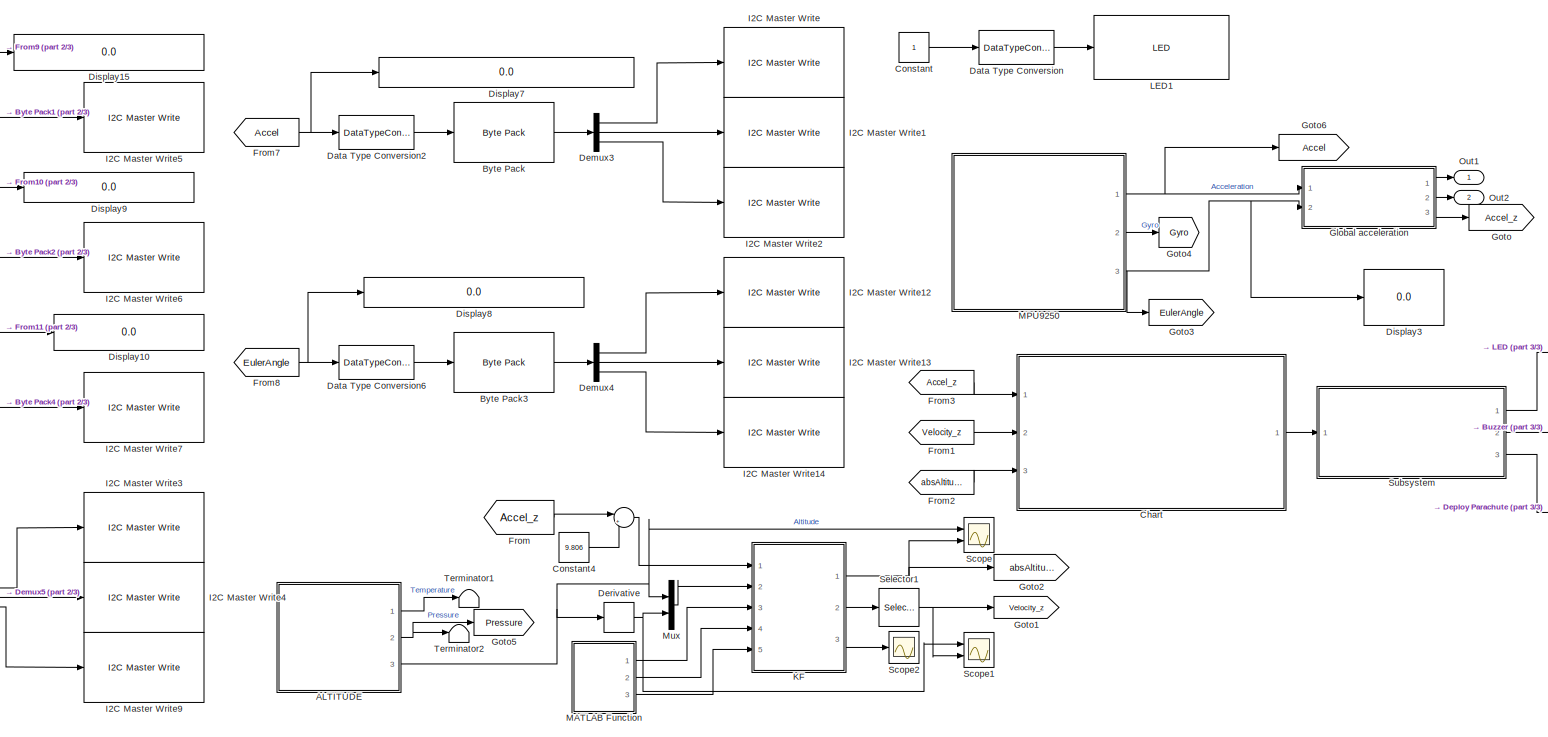
[diagram: root canvas - part 1/3, center side, full height]
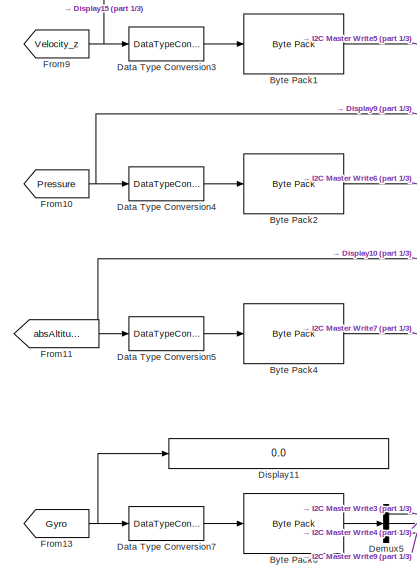
[diagram: root canvas - part 2/3, left side, full height]
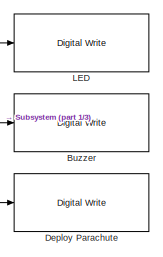
[diagram: root canvas - part 3/3, middle right region]
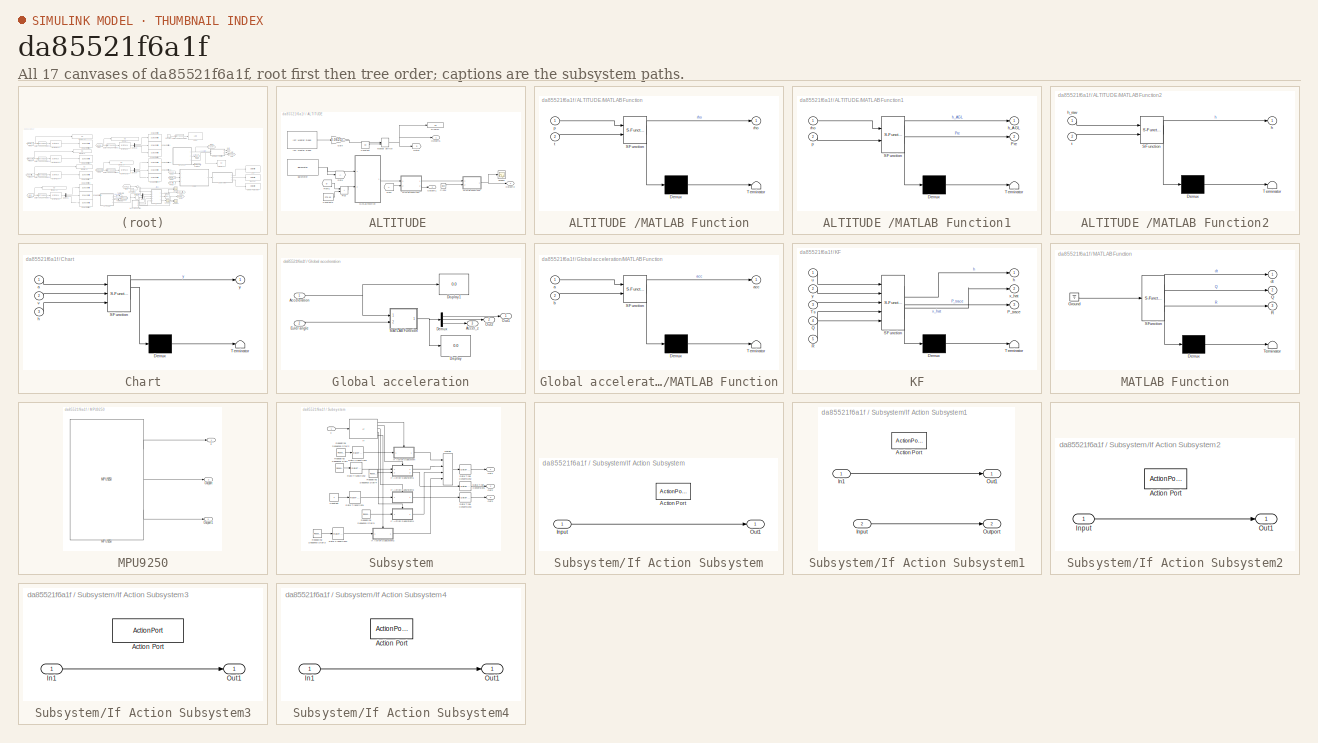
[diagram: thumbnail index - all 17 canvases of the model, root first then tree order]
MODEL slx_da85521f6a1f
KIND model
CONFIG AbsTol = auto
CONFIG EnableMultiTasking = on
CONFIG FixedStep = 0.02
CONFIG MaxStep = auto
CONFIG MinStep = auto
CONFIG RelTol = 1e-3
CONFIG SampleTimeConstraint = Unconstrained
CONFIG SolverName = ode1
CONFIG StartTime = 0.0
CONFIG StopTime = inf
BLOCK [Sum]  
  Inputs = |+-
  Ports = [2, 1]
BLOCK [SubSystem] ALTITUDE 
  Ports = [0, 3]
  RequestExecContextInheritance = off
BLOCK [Reference] ALTITUDE /Barometer  REF=bbblueSensorLib/Barometer
  Ports = [0, 1]
  SourceBlock = bbblueSensorLib/Barometer
  SourceProductBaseCode = SC_BEAGLEBONE_BLUE
  SourceType = beagleboneblue.bbblueBarometer
BLOCK [Clock] ALTITUDE /Clock
BLOCK [Constant] ALTITUDE /Constant
  Value = 30
BLOCK [Constant] ALTITUDE /Constant3
  Value = 273.15
BLOCK [Display] ALTITUDE /Display
  Decimation = 1
  Format = long
  Ports = [1]
BLOCK [From] ALTITUDE /From
BLOCK [From] ALTITUDE /From1
  GotoTag = b
BLOCK [Gain] ALTITUDE /Gain
  Gain = 0.0625/16
  OutDataTypeStr = single
BLOCK [Goto] ALTITUDE /Goto
BLOCK [Goto] ALTITUDE /Goto1
  GotoTag = b
BLOCK [Reference] ALTITUDE /I2C Master Read  REF=bbblueCommlib/I2C Master Read
  Ports = [0, 1]
  SourceBlock = bbblueCommlib/I2C Master Read
  SourceProductBaseCode = SC_BEAGLEBONE_BLUE
  SourceType = beagleboneblue.bbblueI2CMasterRead
BLOCK [SubSystem] ALTITUDE /MATLAB Function
  ErrorFcn = Stateflow.Translate.translate
  PermitHierarchicalResolution = ExplicitOnly
  Ports = [2, 1]
  RequestExecContextInheritance = off
  SFBlockType = MATLAB Function
  TreatAsAtomicUnit = on
BLOCK [Demux] ALTITUDE /MATLAB Function/ Demux 
  Outputs = 1
  Ports = [1, 1]
BLOCK [S-Function] ALTITUDE /MATLAB Function/ SFunction 
  EnableBusSupport = on
  FunctionName = sf_sfun
  PortCounts = [2 2]
  Ports = [2, 2]
  SFcnIsStateOwnerBlock = off
  SFunctionDeploymentMode = off
  Tag = Stateflow S-Function 5
BLOCK [Terminator] ALTITUDE /MATLAB Function/ Terminator 
BLOCK [Inport] ALTITUDE /MATLAB Function/p
BLOCK [Outport] ALTITUDE /MATLAB Function/rho
BLOCK [Inport] ALTITUDE /MATLAB Function/t
  Port = 2
BLOCK [SubSystem] ALTITUDE /MATLAB Function1
  ErrorFcn = Stateflow.Translate.translate
  PermitHierarchicalResolution = ExplicitOnly
  Ports = [2, 2]
  RequestExecContextInheritance = off
  SFBlockType = MATLAB Function
  TreatAsAtomicUnit = on
BLOCK [Demux] ALTITUDE /MATLAB Function1/ Demux 
  Outputs = 1
  Ports = [1, 1]
BLOCK [S-Function] ALTITUDE /MATLAB Function1/ SFunction 
  EnableBusSupport = on
  FunctionName = sf_sfun
  PortCounts = [2 3]
  Ports = [2, 3]
  SFcnIsStateOwnerBlock = off
  SFunctionDeploymentMode = off
  Tag = Stateflow S-Function 7
BLOCK [Terminator] ALTITUDE /MATLAB Function1/ Terminator 
BLOCK [Outport] ALTITUDE /MATLAB Function1/Pre
  Port = 2
BLOCK [Outport] ALTITUDE /MATLAB Function1/h_AGL
BLOCK [Inport] ALTITUDE /MATLAB Function1/p
  Port = 2
BLOCK [Inport] ALTITUDE /MATLAB Function1/rho
BLOCK [SubSystem] ALTITUDE /MATLAB Function2
  ErrorFcn = Stateflow.Translate.translate
  PermitHierarchicalResolution = ExplicitOnly
  Ports = [2, 1]
  RequestExecContextInheritance = off
  SFBlockType = MATLAB Function
  TreatAsAtomicUnit = on
BLOCK [Demux] ALTITUDE /MATLAB Function2/ Demux 
  Outputs = 1
  Ports = [1, 1]
BLOCK [S-Function] ALTITUDE /MATLAB Function2/ SFunction 
  EnableBusSupport = on
  FunctionName = sf_sfun
  PortCounts = [2 2]
  Ports = [2, 2]
  SFcnIsStateOwnerBlock = off
  SFunctionDeploymentMode = off
  Tag = Stateflow S-Function 8
BLOCK [Terminator] ALTITUDE /MATLAB Function2/ Terminator 
BLOCK [Outport] ALTITUDE /MATLAB Function2/h
BLOCK [Inport] ALTITUDE /MATLAB Function2/h_raw
BLOCK [Inport] ALTITUDE /MATLAB Function2/t
  Port = 2
BLOCK [ManualSwitch] ALTITUDE /Manual Switch
BLOCK [Outport] ALTITUDE /Outport1
  Port = 2
BLOCK [Outport] ALTITUDE /Outport2
  Port = 3
BLOCK [Outport] ALTITUDE /Outport5
BLOCK [Sum] ALTITUDE /Plus
  IconShape = rectangular
  Ports = [2, 1]
BLOCK [Scope] ALTITUDE /Scope3
  Floating = off
  NumInputPorts = 1
  Ports = [1]
  ScopeSpecificationString = Simulink.scopes.TimeScopeBlockCfg('CurrentConfiguration', extmgr.ConfigurationSet(extmgr.Configuration('Core','General UI',true),extmgr.Configuration('Core','Source UI',true),extmgr.Configuration('Sources','WiredSimulink',true,'DataLoggingVariableName','ScopeData2'),extmgr.Configuration('Visuals','Time Domain',true,'SerializedDisplays',{struct('MinYLimReal','-0.0844','MaxYLimReal','0.75964','YLabe...<+1425ch>
BLOCK [Reference] Buzzer   REF=bbblueBasicLib/Digital Write
  Ports = [1]
  SourceBlock = bbblueBasicLib/Digital Write
  SourceProductBaseCode = SC_BEAGLEBONE_BLUE
  SourceType = beagleboneblue.bbblueDigitalWrite
BLOCK [Reference] Byte Pack  REF=svdutilitieslib/Byte Pack
  Ports = [1, 1]
  SourceBlock = svdutilitieslib/Byte Pack
  SourceProductBaseCode = ANDROID,ARDUINO,ML_ARDUINO,ECCORTEXA,ECCORTEXR,SC_BEAGLEBONE_BLUE,EC_FREEDOM_BOARD,EC_FRDM_K64F,INTEL_BLOCKSET,MICROBIT,NUCLEO,NVIDIA,PX4AUTOPILOTS,RASPPIIO,STMICRODIS,TIC2000,XILINX_BLOCKSET  <repeated x6 — deduplicated; at blocks: Byte Pack, Byte Pack1, Byte Pack2, Byte Pack3, Byte Pack4, Byte Pack6>
  SourceType = Byte pack
BLOCK [Reference] Byte Pack1  REF=svdutilitieslib/Byte Pack
  Ports = [1, 1]
  SourceBlock = svdutilitieslib/Byte Pack
  SourceType = Byte pack
BLOCK [Reference] Byte Pack2  REF=svdutilitieslib/Byte Pack
  Ports = [1, 1]
  SourceBlock = svdutilitieslib/Byte Pack
  SourceType = Byte pack
BLOCK [Reference] Byte Pack3  REF=svdutilitieslib/Byte Pack
  Ports = [1, 1]
  SourceBlock = svdutilitieslib/Byte Pack
  SourceType = Byte pack
BLOCK [Reference] Byte Pack4  REF=svdutilitieslib/Byte Pack
  Ports = [1, 1]
  SourceBlock = svdutilitieslib/Byte Pack
  SourceType = Byte pack
BLOCK [Reference] Byte Pack6  REF=svdutilitieslib/Byte Pack
  Ports = [1, 1]
  SourceBlock = svdutilitieslib/Byte Pack
  SourceType = Byte pack
BLOCK [SubSystem] Chart
  ErrorFcn = Stateflow.Translate.translate
  PermitHierarchicalResolution = ExplicitOnly
  Ports = [3, 1]
  RequestExecContextInheritance = off
  SFBlockType = Chart
  TreatAsAtomicUnit = on
BLOCK [Demux] Chart/ Demux 
  Outputs = 1
  Ports = [1, 1]
BLOCK [S-Function] Chart/ SFunction 
  EnableBusSupport = on
  FunctionName = sf_sfun
  PortCounts = [3 2]
  Ports = [3, 2]
  SFcnIsStateOwnerBlock = off
  SFunctionDeploymentMode = off
  Tag = Stateflow S-Function 3
BLOCK [Terminator] Chart/ Terminator 
BLOCK [Inport] Chart/a
BLOCK [Inport] Chart/h
  Port = 3
BLOCK [Inport] Chart/v
  Port = 2
BLOCK [Outport] Chart/y
BLOCK [Constant] Constant
BLOCK [Constant] Constant4
  Value = 9.806
BLOCK [DataTypeConversion] Data Type Conversion
  OutDataTypeStr = uint8
  RndMeth = Floor
  SaturateOnIntegerOverflow = off
BLOCK [DataTypeConversion] Data Type Conversion2
  OutDataTypeStr = single
  RndMeth = Floor
  SaturateOnIntegerOverflow = off
BLOCK [DataTypeConversion] Data Type Conversion3
  OutDataTypeStr = single
  RndMeth = Floor
  SaturateOnIntegerOverflow = off
BLOCK [DataTypeConversion] Data Type Conversion4
  OutDataTypeStr = single
  RndMeth = Floor
  SaturateOnIntegerOverflow = off
BLOCK [DataTypeConversion] Data Type Conversion5
  OutDataTypeStr = single
  RndMeth = Floor
  SaturateOnIntegerOverflow = off
BLOCK [DataTypeConversion] Data Type Conversion6
  OutDataTypeStr = single
  RndMeth = Floor
  SaturateOnIntegerOverflow = off
BLOCK [DataTypeConversion] Data Type Conversion7
  OutDataTypeStr = single
  RndMeth = Floor
  SaturateOnIntegerOverflow = off
BLOCK [Demux] Demux3
  Outputs = 3
  Ports = [1, 3]
BLOCK [Demux] Demux4
  Outputs = 3
  Ports = [1, 3]
BLOCK [Demux] Demux5
  Outputs = 3
  Ports = [1, 3]
BLOCK [Reference] Deploy Parachute  REF=bbblueBasicLib/Digital Write
  Ports = [1]
  SourceBlock = bbblueBasicLib/Digital Write
  SourceProductBaseCode = SC_BEAGLEBONE_BLUE
  SourceType = beagleboneblue.bbblueDigitalWrite
BLOCK [Derivative] Derivative
BLOCK [Display] Display10
  Decimation = 1
  Ports = [1]
BLOCK [Display] Display11
  Decimation = 1
  Ports = [1]
BLOCK [Display] Display15
  Decimation = 1
  Ports = [1]
BLOCK [Display] Display3
  Decimation = 1
  Ports = [1]
BLOCK [Display] Display7
  Decimation = 1
  Ports = [1]
BLOCK [Display] Display8
  Decimation = 1
  Ports = [1]
BLOCK [Display] Display9
  Decimation = 1
  Ports = [1]
BLOCK [From] From
  GotoTag = Accel_z
BLOCK [From] From1
  GotoTag = Velocity_z
BLOCK [From] From10
  GotoTag = Pressure
BLOCK [From] From11
  GotoTag = absAltitude
BLOCK [From] From13
  GotoTag = Gyro
BLOCK [From] From2
  GotoTag = absAltitude
BLOCK [From] From3
  GotoTag = Accel_z
BLOCK [From] From7
  GotoTag = Accel
BLOCK [From] From8
  GotoTag = EulerAngle
BLOCK [From] From9
  GotoTag = Velocity_z
BLOCK [SubSystem] Global acceleration
  Ports = [2, 3]
  RequestExecContextInheritance = off
BLOCK [Outport] Global acceleration/Accel_z
  Port = 3
BLOCK [Inport] Global acceleration/Acceleration
BLOCK [Demux] Global acceleration/Demux
  Outputs = 3
  Ports = [1, 3]
BLOCK [Display] Global acceleration/Display
  Decimation = 1
  Ports = [1]
BLOCK [Display] Global acceleration/Display1
  Decimation = 1
  Ports = [1]
BLOCK [Inport] Global acceleration/Euler angle
  Port = 2
BLOCK [SubSystem] Global acceleration/MATLAB Function
  ErrorFcn = Stateflow.Translate.translate
  PermitHierarchicalResolution = ExplicitOnly
  Ports = [2, 1]
  RequestExecContextInheritance = off
  SFBlockType = MATLAB Function
  TreatAsAtomicUnit = on
BLOCK [Demux] Global acceleration/MATLAB Function/ Demux 
  Outputs = 1
  Ports = [1, 1]
BLOCK [S-Function] Global acceleration/MATLAB Function/ SFunction 
  EnableBusSupport = on
  FunctionName = sf_sfun
  PortCounts = [2 2]
  Ports = [2, 2]
  SFcnIsStateOwnerBlock = off
  SFunctionDeploymentMode = off
  Tag = Stateflow S-Function 2
BLOCK [Terminator] Global acceleration/MATLAB Function/ Terminator 
BLOCK [Inport] Global acceleration/MATLAB Function/a
BLOCK [Outport] Global acceleration/MATLAB Function/acc
BLOCK [Inport] Global acceleration/MATLAB Function/b
  Port = 2
BLOCK [Outport] Global acceleration/Out1
BLOCK [Outport] Global acceleration/Out2
  Port = 2
BLOCK [Goto] Goto
  GotoTag = Accel_z
BLOCK [Goto] Goto1
  GotoTag = Velocity_z
BLOCK [Goto] Goto2
  GotoTag = absAltitude
BLOCK [Goto] Goto3
  GotoTag = EulerAngle
BLOCK [Goto] Goto4
  GotoTag = Gyro
BLOCK [Goto] Goto5
  GotoTag = Pressure
BLOCK [Goto] Goto6
  GotoTag = Accel
BLOCK [Reference] I2C Master Write  REF=bbblueCommlib/I2C Master Write
  Ports = [1]
  SourceBlock = bbblueCommlib/I2C Master Write
  SourceProductBaseCode = SC_BEAGLEBONE_BLUE
  SourceType = beagleboneblue.bbblueI2CMasterWrite
BLOCK [Reference] I2C Master Write1  REF=bbblueCommlib/I2C Master Write
  Ports = [1]
  SourceBlock = bbblueCommlib/I2C Master Write
  SourceProductBaseCode = SC_BEAGLEBONE_BLUE
  SourceType = beagleboneblue.bbblueI2CMasterWrite
BLOCK [Reference] I2C Master Write12  REF=bbblueCommlib/I2C Master Write
  Ports = [1]
  SourceBlock = bbblueCommlib/I2C Master Write
  SourceProductBaseCode = SC_BEAGLEBONE_BLUE
  SourceType = beagleboneblue.bbblueI2CMasterWrite
BLOCK [Reference] I2C Master Write13  REF=bbblueCommlib/I2C Master Write
  Ports = [1]
  SourceBlock = bbblueCommlib/I2C Master Write
  SourceProductBaseCode = SC_BEAGLEBONE_BLUE
  SourceType = beagleboneblue.bbblueI2CMasterWrite
BLOCK [Reference] I2C Master Write14  REF=bbblueCommlib/I2C Master Write
  Ports = [1]
  SourceBlock = bbblueCommlib/I2C Master Write
  SourceProductBaseCode = SC_BEAGLEBONE_BLUE
  SourceType = beagleboneblue.bbblueI2CMasterWrite
BLOCK [Reference] I2C Master Write2  REF=bbblueCommlib/I2C Master Write
  Ports = [1]
  SourceBlock = bbblueCommlib/I2C Master Write
  SourceProductBaseCode = SC_BEAGLEBONE_BLUE
  SourceType = beagleboneblue.bbblueI2CMasterWrite
BLOCK [Reference] I2C Master Write3  REF=bbblueCommlib/I2C Master Write
  Ports = [1]
  SourceBlock = bbblueCommlib/I2C Master Write
  SourceProductBaseCode = SC_BEAGLEBONE_BLUE
  SourceType = beagleboneblue.bbblueI2CMasterWrite
BLOCK [Reference] I2C Master Write4  REF=bbblueCommlib/I2C Master Write
  Ports = [1]
  SourceBlock = bbblueCommlib/I2C Master Write
  SourceProductBaseCode = SC_BEAGLEBONE_BLUE
  SourceType = beagleboneblue.bbblueI2CMasterWrite
BLOCK [Reference] I2C Master Write5  REF=bbblueCommlib/I2C Master Write
  Ports = [1]
  SourceBlock = bbblueCommlib/I2C Master Write
  SourceProductBaseCode = SC_BEAGLEBONE_BLUE
  SourceType = beagleboneblue.bbblueI2CMasterWrite
BLOCK [Reference] I2C Master Write6  REF=bbblueCommlib/I2C Master Write
  Ports = [1]
  SourceBlock = bbblueCommlib/I2C Master Write
  SourceProductBaseCode = SC_BEAGLEBONE_BLUE
  SourceType = beagleboneblue.bbblueI2CMasterWrite
BLOCK [Reference] I2C Master Write7  REF=bbblueCommlib/I2C Master Write
  Ports = [1]
  SourceBlock = bbblueCommlib/I2C Master Write
  SourceProductBaseCode = SC_BEAGLEBONE_BLUE
  SourceType = beagleboneblue.bbblueI2CMasterWrite
BLOCK [Reference] I2C Master Write9  REF=bbblueCommlib/I2C Master Write
  Ports = [1]
  SourceBlock = bbblueCommlib/I2C Master Write
  SourceProductBaseCode = SC_BEAGLEBONE_BLUE
  SourceType = beagleboneblue.bbblueI2CMasterWrite
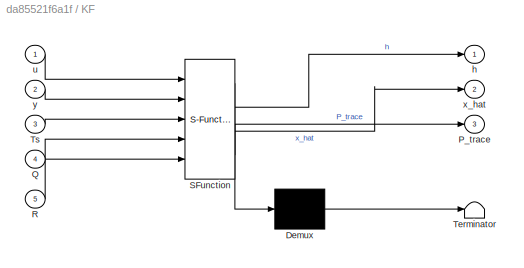
BLOCK [SubSystem] KF
  ErrorFcn = Stateflow.Translate.translate
  PermitHierarchicalResolution = ExplicitOnly
  Ports = [5, 3]
  RequestExecContextInheritance = off
  SFBlockType = MATLAB Function
  TreatAsAtomicUnit = on
BLOCK [Demux] KF/ Demux 
  Outputs = 1
  Ports = [1, 1]
BLOCK [S-Function] KF/ SFunction 
  EnableBusSupport = on
  FunctionName = sf_sfun
  PortCounts = [5 4]
  Ports = [5, 4]
  SFcnIsStateOwnerBlock = off
  SFunctionDeploymentMode = off
  Tag = Stateflow S-Function 6
BLOCK [Terminator] KF/ Terminator 
BLOCK [Outport] KF/P_trace
  Port = 3
BLOCK [Inport] KF/Q
  Port = 4
BLOCK [Inport] KF/R
  Port = 5
BLOCK [Inport] KF/Ts
  Port = 3
BLOCK [Outport] KF/h
BLOCK [Inport] KF/u
BLOCK [Outport] KF/x_hat
  Port = 2
BLOCK [Inport] KF/y
  Port = 2
BLOCK [Reference] LED   REF=bbblueBasicLib/Digital Write
  Ports = [1]
  SourceBlock = bbblueBasicLib/Digital Write
  SourceProductBaseCode = SC_BEAGLEBONE_BLUE
  SourceType = beagleboneblue.bbblueDigitalWrite
BLOCK [Reference] LED1  REF=bbblueBasicLib/LED
  Ports = [1]
  SourceBlock = bbblueBasicLib/LED
  SourceProductBaseCode = SC_BEAGLEBONE_BLUE
  SourceType = beagleboneblue.bbblueLED
BLOCK [SubSystem] MATLAB Function
  ErrorFcn = Stateflow.Translate.translate
  PermitHierarchicalResolution = ExplicitOnly
  Ports = [0, 3]
  RequestExecContextInheritance = off
  SFBlockType = MATLAB Function
  TreatAsAtomicUnit = on
BLOCK [Demux] MATLAB Function/ Demux 
  Outputs = 1
  Ports = [1, 1]
BLOCK [Ground] MATLAB Function/ Ground 
BLOCK [S-Function] MATLAB Function/ SFunction 
  EnableBusSupport = on
  FunctionName = sf_sfun
  PortCounts = [1 4]
  Ports = [1, 4]
  SFcnIsStateOwnerBlock = off
  SFunctionDeploymentMode = off
  Tag = Stateflow S-Function 1
BLOCK [Terminator] MATLAB Function/ Terminator 
BLOCK [Outport] MATLAB Function/Q
  Port = 2
BLOCK [Outport] MATLAB Function/R
  Port = 3
BLOCK [Outport] MATLAB Function/dt
BLOCK [SubSystem] MPU9250
  Ports = [0, 3]
  RequestExecContextInheritance = off
BLOCK [Outport] MPU9250/1
BLOCK [Reference] MPU9250/MPU9250  REF=bbblueSensorLib/MPU9250
  Ports = [0, 3]
  SourceBlock = bbblueSensorLib/MPU9250
  SourceProductBaseCode = SC_BEAGLEBONE_BLUE
  SourceType = beagleboneblue.bbblueMPU9250
BLOCK [Outport] MPU9250/Outport
  Port = 2
BLOCK [Outport] MPU9250/Outport1
  Port = 3
BLOCK [Mux] Mux
  DisplayOption = bar
  Inputs = 2
  Ports = [2, 1]
BLOCK [Outport] Out1
BLOCK [Outport] Out2
  Port = 2
BLOCK [Scope] Scope
  Floating = off
  NumInputPorts = 2
  Ports = [2]
  ScopeSpecificationString = Simulink.scopes.TimeScopeBlockCfg('CurrentConfiguration', extmgr.ConfigurationSet(extmgr.Configuration('Core','General UI',true),extmgr.Configuration('Core','Source UI',true),extmgr.Configuration('Sources','WiredSimulink',true,'DataLoggingVariableName','ScopeData1'),extmgr.Configuration('Visuals','Time Domain',true,'SerializedDisplays',{struct('MinYLimReal','-0.94547','MaxYLimReal','-0.46483','YLa...<+1496ch>
BLOCK [Scope] Scope1
  Floating = off
  NumInputPorts = 2
  Ports = [2]
  ScopeSpecificationString = Simulink.scopes.TimeScopeBlockCfg('CurrentConfiguration', extmgr.ConfigurationSet(extmgr.Configuration('Core','General UI',true),extmgr.Configuration('Core','Source UI',true),extmgr.Configuration('Sources','WiredSimulink',true,'DataLoggingVariableName','ScopeData2'),extmgr.Configuration('Visuals','Time Domain',true,'SerializedDisplays',{struct('MinYLimReal','-2.77683','MaxYLimReal','1.159','YLabel...<+1499ch>
BLOCK [Scope] Scope2
  Floating = off
  NumInputPorts = 1
  Ports = [1]
  ScopeSpecificationString = Simulink.scopes.TimeScopeBlockCfg('CurrentConfiguration', extmgr.ConfigurationSet(extmgr.Configuration('Core','General UI',true),extmgr.Configuration('Core','Source UI',true),extmgr.Configuration('Sources','WiredSimulink',true,'DataLoggingVariableName','ScopeData3'),extmgr.Configuration('Visuals','Time Domain',true,'SerializedDisplays',{struct('MinYLimReal','-12.45042','MaxYLimReal','114.62141','Y...<+1432ch>
BLOCK [Selector] Selector1
  IndexOptions = Index vector (dialog)
  Indices = [2]
  InputPortWidth = 4
  OutputSizes = 1
  Ports = [1, 1]
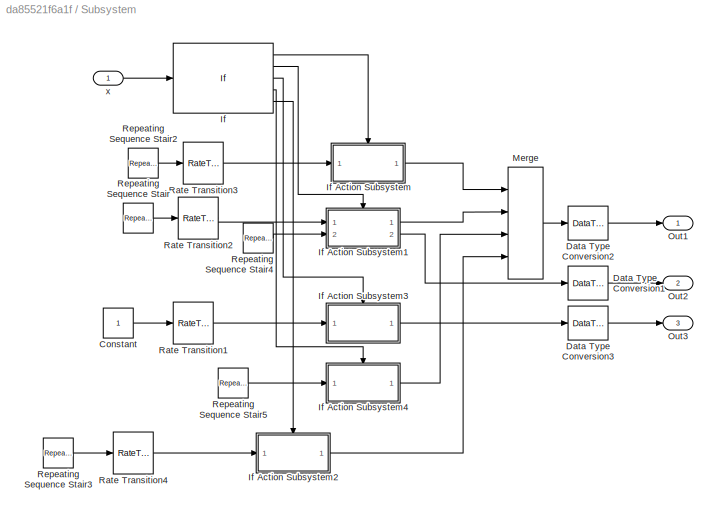
BLOCK [SubSystem] Subsystem
  Ports = [1, 3]
  RequestExecContextInheritance = off
BLOCK [Constant] Subsystem/Constant
BLOCK [DataTypeConversion] Subsystem/Data Type Conversion1
  OutDataTypeStr = uint8
  RndMeth = Floor
  SaturateOnIntegerOverflow = off
BLOCK [DataTypeConversion] Subsystem/Data Type Conversion2
  OutDataTypeStr = uint8
  RndMeth = Floor
  SaturateOnIntegerOverflow = off
BLOCK [DataTypeConversion] Subsystem/Data Type Conversion3
  OutDataTypeStr = uint8
  RndMeth = Floor
  SaturateOnIntegerOverflow = off
BLOCK [If] Subsystem/If
  ElseIfExpressions = u1 == 2, u1 == 3, u1 == 4
  IfExpression = u1 == 1
  Ports = [1, 5]
BLOCK [SubSystem] Subsystem/If Action Subsystem
  Ports = [1, 1, 0, 0, 0, 0, 0, 1]
  RequestExecContextInheritance = off
  TreatAsAtomicUnit = on
BLOCK [ActionPort] Subsystem/If Action Subsystem/Action Port
  ActionPortLabel = if(u1 == 1)
BLOCK [Inport] Subsystem/If Action Subsystem/Input
BLOCK [Outport] Subsystem/If Action Subsystem/Out1
BLOCK [SubSystem] Subsystem/If Action Subsystem1
  Ports = [2, 2, 0, 0, 0, 0, 0, 1]
  RequestExecContextInheritance = off
  TreatAsAtomicUnit = on
BLOCK [ActionPort] Subsystem/If Action Subsystem1/Action Port
  ActionPortLabel = elseif(u1 == 2)
BLOCK [Inport] Subsystem/If Action Subsystem1/In1
BLOCK [Inport] Subsystem/If Action Subsystem1/Input
  Port = 2
BLOCK [Outport] Subsystem/If Action Subsystem1/Out1
BLOCK [Outport] Subsystem/If Action Subsystem1/Outport
  Port = 2
BLOCK [SubSystem] Subsystem/If Action Subsystem2
  Ports = [1, 1, 0, 0, 0, 0, 0, 1]
  RequestExecContextInheritance = off
  TreatAsAtomicUnit = on
BLOCK [ActionPort] Subsystem/If Action Subsystem2/Action Port
  ActionPortLabel = else
BLOCK [Inport] Subsystem/If Action Subsystem2/Input
BLOCK [Outport] Subsystem/If Action Subsystem2/Out1
BLOCK [SubSystem] Subsystem/If Action Subsystem3
  Ports = [1, 1, 0, 0, 0, 0, 0, 1]
  RequestExecContextInheritance = off
  TreatAsAtomicUnit = on
BLOCK [ActionPort] Subsystem/If Action Subsystem3/Action Port
  ActionPortLabel = elseif( u1 == 3)
BLOCK [Inport] Subsystem/If Action Subsystem3/In1
BLOCK [Outport] Subsystem/If Action Subsystem3/Out1
BLOCK [SubSystem] Subsystem/If Action Subsystem4
  Ports = [1, 1, 0, 0, 0, 0, 0, 1]
  RequestExecContextInheritance = off
  TreatAsAtomicUnit = on
BLOCK [ActionPort] Subsystem/If Action Subsystem4/Action Port
  ActionPortLabel = elseif( u1 == 4)
BLOCK [Inport] Subsystem/If Action Subsystem4/In1
BLOCK [Outport] Subsystem/If Action Subsystem4/Out1
BLOCK [Merge] Subsystem/Merge
  Inputs = 4
  Ports = [4, 1]
BLOCK [Outport] Subsystem/Out1
BLOCK [Outport] Subsystem/Out2
  Port = 2
BLOCK [Outport] Subsystem/Out3
  Port = 3
BLOCK [RateTransition] Subsystem/Rate Transition1
BLOCK [RateTransition] Subsystem/Rate Transition2
BLOCK [RateTransition] Subsystem/Rate Transition3
BLOCK [RateTransition] Subsystem/Rate Transition4
BLOCK [Reference] Subsystem/Repeating Sequence Stair  REF=simulink/Sources/Repeating
Sequence
Stair
  Ports = [0, 1]
  SourceBlock = simulink/Sources/Repeating\nSequence\nStair
  SourceProductBaseCode = SL
  SourceType = Repeating Sequence Stair
BLOCK [Reference] Subsystem/Repeating Sequence Stair2  REF=simulink/Sources/Repeating
Sequence
Stair
  Ports = [0, 1]
  SourceBlock = simulink/Sources/Repeating\nSequence\nStair
  SourceProductBaseCode = SL
  SourceType = Repeating Sequence Stair
BLOCK [Reference] Subsystem/Repeating Sequence Stair3  REF=simulink/Sources/Repeating
Sequence
Stair
  Ports = [0, 1]
  SourceBlock = simulink/Sources/Repeating\nSequence\nStair
  SourceProductBaseCode = SL
  SourceType = Repeating Sequence Stair
BLOCK [Reference] Subsystem/Repeating Sequence Stair4  REF=simulink/Sources/Repeating
Sequence
Stair
  Ports = [0, 1]
  SourceBlock = simulink/Sources/Repeating\nSequence\nStair
  SourceProductBaseCode = SL
  SourceType = Repeating Sequence Stair
BLOCK [Reference] Subsystem/Repeating Sequence Stair5  REF=simulink/Sources/Repeating
Sequence
Stair
  Ports = [0, 1]
  SourceBlock = simulink/Sources/Repeating\nSequence\nStair
  SourceProductBaseCode = SL
  SourceType = Repeating Sequence Stair
BLOCK [Inport] Subsystem/x
BLOCK [Terminator] Terminator1
BLOCK [Terminator] Terminator2
LINE  :1 -> KF:1
NET ALTITUDE /Barometer:1 -> ALTITUDE /Goto:1, ALTITUDE /MATLAB Function:1
LINE ALTITUDE /Clock:1 -> ALTITUDE /MATLAB Function2:2
LINE ALTITUDE /Constant3:1 -> ALTITUDE /Plus:2
LINE ALTITUDE /Constant:1 -> ALTITUDE /Manual Switch:2
LINE ALTITUDE /From1:1 -> ALTITUDE /Plus:1
LINE ALTITUDE /From:1 -> ALTITUDE /MATLAB Function1:2
LINE ALTITUDE /Gain:1 -> ALTITUDE /Manual Switch:1
LINE ALTITUDE /I2C Master Read:1 -> ALTITUDE /Gain:1
LINE ALTITUDE /MATLAB Function1:1 -> ALTITUDE /MATLAB Function2:1
LINE ALTITUDE /MATLAB Function1:2 -> ALTITUDE /Outport1:1
NET ALTITUDE /MATLAB Function2:1 -> ALTITUDE /Outport2:1, ALTITUDE /Scope3:1
LINE ALTITUDE /MATLAB Function:1 -> ALTITUDE /MATLAB Function1:1
NET ALTITUDE /Manual Switch:1 -> ALTITUDE /Display:1, ALTITUDE /Goto1:1, ALTITUDE /Outport5:1
LINE ALTITUDE /Plus:1 -> ALTITUDE /MATLAB Function:2
LINE ALTITUDE :1 -> Terminator1:1
NET ALTITUDE :2 -> Goto5:1, Terminator2:1
NET ALTITUDE :3 -> Derivative:1, Mux:1, Scope:1
LINE Byte Pack1:1 -> I2C Master Write5:1
LINE Byte Pack2:1 -> I2C Master Write6:1
LINE Byte Pack3:1 -> Demux4:1
LINE Byte Pack4:1 -> I2C Master Write7:1
LINE Byte Pack6:1 -> Demux5:1
LINE Byte Pack:1 -> Demux3:1
LINE Chart:1 -> Subsystem:1
LINE Constant4:1 ->  :2
LINE Constant:1 -> Data Type Conversion:1
LINE Data Type Conversion2:1 -> Byte Pack:1
LINE Data Type Conversion3:1 -> Byte Pack1:1
LINE Data Type Conversion4:1 -> Byte Pack2:1
LINE Data Type Conversion5:1 -> Byte Pack4:1
LINE Data Type Conversion6:1 -> Byte Pack3:1
LINE Data Type Conversion7:1 -> Byte Pack6:1
LINE Data Type Conversion:1 -> LED1:1
LINE Demux3:1 -> I2C Master Write:1
LINE Demux3:2 -> I2C Master Write1:1
LINE Demux3:3 -> I2C Master Write2:1
LINE Demux4:1 -> I2C Master Write12:1
LINE Demux4:2 -> I2C Master Write13:1
LINE Demux4:3 -> I2C Master Write14:1
LINE Demux5:1 -> I2C Master Write3:1
LINE Demux5:2 -> I2C Master Write4:1
LINE Demux5:3 -> I2C Master Write9:1
NET Derivative:1 -> Mux:2, Scope1:1
NET From10:1 -> Data Type Conversion4:1, Display9:1
NET From11:1 -> Data Type Conversion5:1, Display10:1
NET From13:1 -> Data Type Conversion7:1, Display11:1
LINE From1:1 -> Chart:2
LINE From2:1 -> Chart:3
LINE From3:1 -> Chart:1
NET From7:1 -> Data Type Conversion2:1, Display7:1
NET From8:1 -> Data Type Conversion6:1, Display8:1
NET From9:1 -> Data Type Conversion3:1, Display15:1
LINE From:1 ->  :1
NET Global acceleration/Acceleration:1 -> Global acceleration/Display1:1, Global acceleration/MATLAB Function:1
LINE Global acceleration/Demux:1 -> Global acceleration/Out1:1
LINE Global acceleration/Demux:2 -> Global acceleration/Out2:1
LINE Global acceleration/Demux:3 -> Global acceleration/Accel_z:1
LINE Global acceleration/Euler angle:1 -> Global acceleration/MATLAB Function:2
NET Global acceleration/MATLAB Function:1 -> Global acceleration/Demux:1, Global acceleration/Display:1
LINE Global acceleration:1 -> Out1:1
LINE Global acceleration:2 -> Out2:1
LINE Global acceleration:3 -> Goto:1
NET KF:1 -> Goto2:1, Scope:2
LINE KF:2 -> Selector1:1
LINE KF:3 -> Scope2:1
LINE MATLAB Function:1 -> KF:3
LINE MATLAB Function:2 -> KF:4
LINE MATLAB Function:3 -> KF:5
LINE MPU9250/MPU9250:1 -> MPU9250/1:1
LINE MPU9250/MPU9250:2 -> MPU9250/Outport:1
LINE MPU9250/MPU9250:3 -> MPU9250/Outport1:1
NET MPU9250:1 -> Global acceleration:1, Goto6:1
LINE MPU9250:2 -> Goto4:1
NET MPU9250:3 -> Display3:1, Global acceleration:2, Goto3:1
LINE Mux:1 -> KF:2
NET Selector1:1 -> Goto1:1, Scope1:2
LINE Subsystem/Constant:1 -> Subsystem/Rate Transition1:1
LINE Subsystem/Data Type Conversion1:1 -> Subsystem/Out2:1
LINE Subsystem/Data Type Conversion2:1 -> Subsystem/Out1:1
LINE Subsystem/Data Type Conversion3:1 -> Subsystem/Out3:1
LINE Subsystem/If Action Subsystem/Input:1 -> Subsystem/If Action Subsystem/Out1:1
LINE Subsystem/If Action Subsystem1/In1:1 -> Subsystem/If Action Subsystem1/Out1:1
LINE Subsystem/If Action Subsystem1/Input:1 -> Subsystem/If Action Subsystem1/Outport:1
LINE Subsystem/If Action Subsystem1:1 -> Subsystem/Merge:2
LINE Subsystem/If Action Subsystem1:2 -> Subsystem/Data Type Conversion1:1
LINE Subsystem/If Action Subsystem2/Input:1 -> Subsystem/If Action Subsystem2/Out1:1
LINE Subsystem/If Action Subsystem2:1 -> Subsystem/Merge:4
LINE Subsystem/If Action Subsystem3/In1:1 -> Subsystem/If Action Subsystem3/Out1:1
LINE Subsystem/If Action Subsystem3:1 -> Subsystem/Data Type Conversion3:1
LINE Subsystem/If Action Subsystem4/In1:1 -> Subsystem/If Action Subsystem4/Out1:1
LINE Subsystem/If Action Subsystem4:1 -> Subsystem/Merge:3
LINE Subsystem/If Action Subsystem:1 -> Subsystem/Merge:1
LINE Subsystem/If:1 -> Subsystem/If Action Subsystem:ifaction
LINE Subsystem/If:2 -> Subsystem/If Action Subsystem1:ifaction
LINE Subsystem/If:3 -> Subsystem/If Action Subsystem3:ifaction
LINE Subsystem/If:4 -> Subsystem/If Action Subsystem4:ifaction
LINE Subsystem/If:5 -> Subsystem/If Action Subsystem2:ifaction
LINE Subsystem/Merge:1 -> Subsystem/Data Type Conversion2:1
LINE Subsystem/Rate Transition1:1 -> Subsystem/If Action Subsystem3:1
LINE Subsystem/Rate Transition2:1 -> Subsystem/If Action Subsystem1:1
LINE Subsystem/Rate Transition3:1 -> Subsystem/If Action Subsystem:1
LINE Subsystem/Rate Transition4:1 -> Subsystem/If Action Subsystem2:1
LINE Subsystem/Repeating Sequence Stair2:1 -> Subsystem/Rate Transition3:1
LINE Subsystem/Repeating Sequence Stair3:1 -> Subsystem/Rate Transition4:1
LINE Subsystem/Repeating Sequence Stair4:1 -> Subsystem/If Action Subsystem1:2
LINE Subsystem/Repeating Sequence Stair5:1 -> Subsystem/If Action Subsystem4:1
LINE Subsystem/Repeating Sequence Stair:1 -> Subsystem/Rate Transition2:1
LINE Subsystem/x:1 -> Subsystem/If:1
LINE Subsystem:1 -> LED :1
LINE Subsystem:2 -> Buzzer :1
LINE Subsystem:3 -> Deploy Parachute:1
note: NET lines group one-source signal fan-out (src -> all destinations, sorted); 1:1 wires keep LINE
CHART MATLAB Function states=1 transitions=1
  STATE_LABEL 'eML_blk_kernel()'
  STATE_LABEL 'SCRIPT:\nfunction [dt,Q,R] = fcn\n\n%n  = 3;\ndt = 0.02;\n\nQ = 1e-6*diag([1 1 100 100]);\nR = 1e-1*diag([10 5]);\n\n\n'
CHART Global acceleration/MATLAB Function states=1 transitions=1
  STATE_LABEL 'eML_blk_kernel()'
  STATE_LABEL "SCRIPT:\nfunction acc = fcn(a,b)\nb1= b(1)*pi/180; %roll\nb2 = b(2)*pi/180; %pitch\nb3 = b(3)*pi/180; %yaw\nRz = [cos(b3) sin(b3) 0 ;\n    -sin(b3) cos(b3) 0;\n    0 0 1];\n\nRx = [1 0 0;\n    0 cos(b1) sin(b1);\n    0 -sin(b1) cos(b1)];\n\nRy = [cos(b2) 0 -sin(b2);\n    0 1 0;\n    sin(b2) 0 cos(b2)];\n\nacc = (Rx*Ry*Rz)'*a;\n\n"
CHART Chart states=5 transitions=5
  STATE_LABEL 'OnLaunchPad\ny=0;\ny=2;\n'
  STATE_LABEL 'LaunchDetect\ny=1;'
  STATE_LABEL 'ApogeeDetect\ny=3;\n'
  STATE_LABEL 'Droping\ny=3;\n'
  STATE_LABEL 'TouchDown\ny=4;'
CHART ALTITUDE /MATLAB Function states=1 transitions=1
  STATE_LABEL 'eML_blk_kernel()'
  STATE_LABEL 'SCRIPT:\nfunction rho = fcn(p,t)\n\nM = 0.0289644; %kg/mol\\\nR = 8.31432; %Nm/molK\n\nrho = (M*p)/(R*t);\n\n'
CHART KF states=1 transitions=1
  STATE_LABEL 'eML_blk_kernel()'
  STATE_LABEL 'SCRIPT:\nfunction [h,x_hat,P_trace] = fcn(u,y,Ts,Q,R)\n\npersistent x_ P_\nif isempty(x_), x_= [0;0;0.1;0.1]; P_ = 1e0*diag([1 1 100 100]);end\n\n% a_IMU = a - ba\n% v_dot = a\n% h_dot = v\n% let x1 = h, x2 = v, x3 = ba\n% x1_dot = x2\n% x2_dot = a_IMU + x3\n% x3_dot = 0\n\nA = [0  1   0   1\n     0  0   1   0\n     0  0   0   0\n     0  0   0   0];\nB = [0;1;0;0];\nAd = eye(4) + A*Ts;\nBd = B*Ts;\n\nx = Ad*x_ + Bd*u; ...<+173ch>'
CHART ALTITUDE /MATLAB Function1 states=1 transitions=1
  STATE_LABEL 'eML_blk_kernel()'
  STATE_LABEL 'SCRIPT:\nfunction [h_AGL, Pre]= fcn(rho,p)\nP0 = 101325; %N/m^2\ng = 9.80665; %m/s^2\nhg = 14.3256; %m \nPre = p-P0;\nh = (Pre)/-(rho*g);\nh_AGL = h-hg\n'
CHART ALTITUDE /MATLAB Function2 states=1 transitions=1
  STATE_LABEL 'eML_blk_kernel()'
  STATE_LABEL 'SCRIPT:\nfunction h = fcn(h_raw, t)\n\npersistent h_offset\nif isempty(h_offset), h_offset = h_raw; end\nif t<3\n    h_offset = h_raw;\nend\n\nh = h_raw - h_offset;\n'
CHART  states=0 transitions=0
CHART  states=0 transitions=0
CHART  states=0 transitions=0
CHART  states=0 transitions=0
CHART  states=0 transitions=0
CHART  states=0 transitions=0
CHART  states=0 transitions=0
